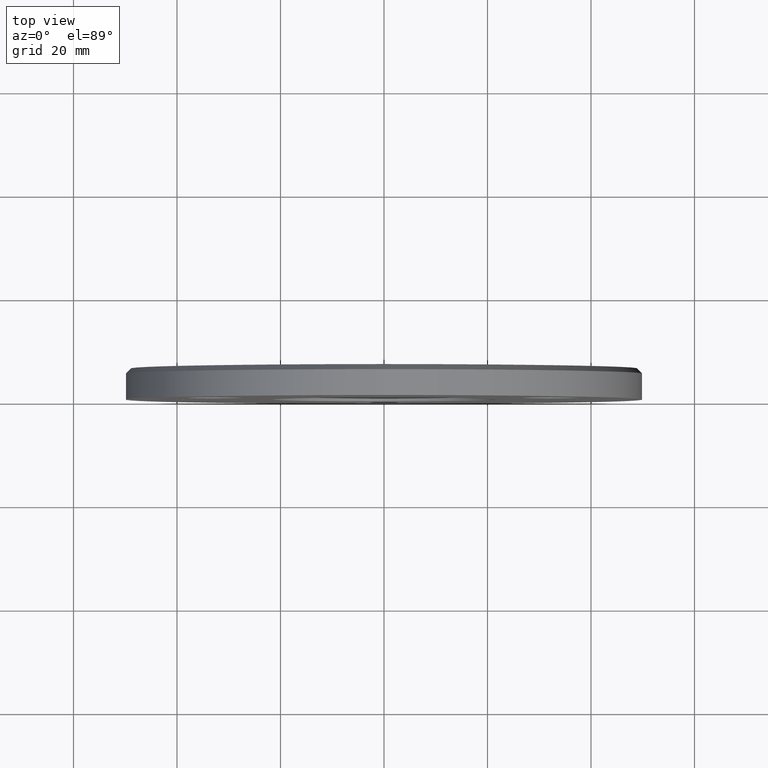
[diagram: clean part render]
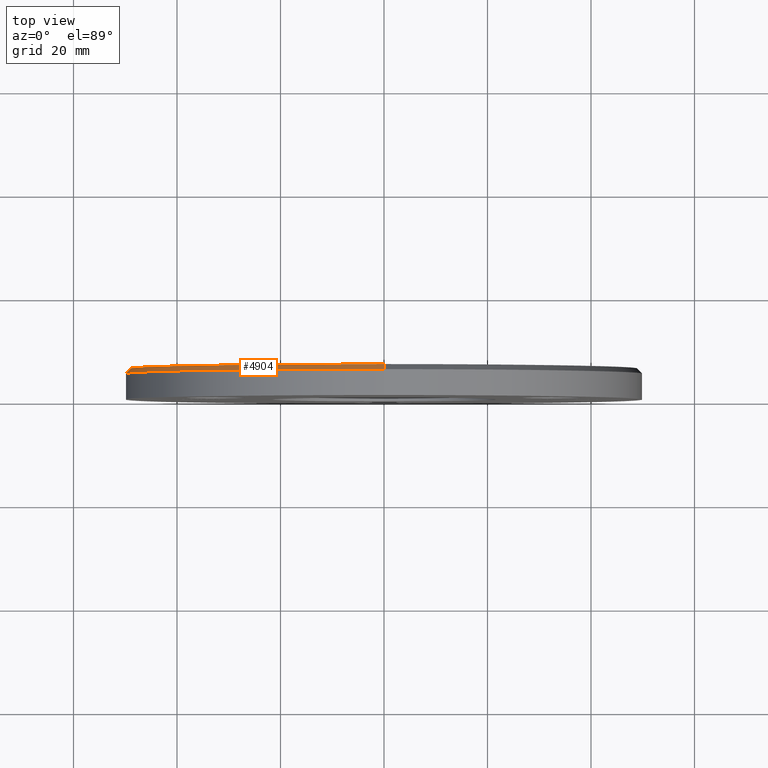
[diagram: same view with one face highlighted and labeled with its STEP entity id]
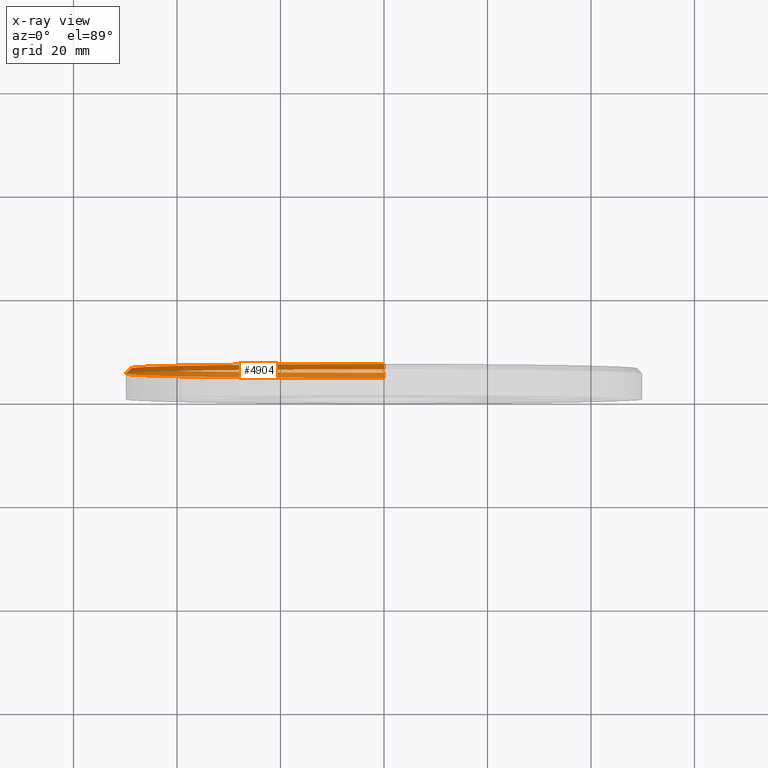
[diagram: x-ray of the same camera — body ghosted, the highlighted face saturated]
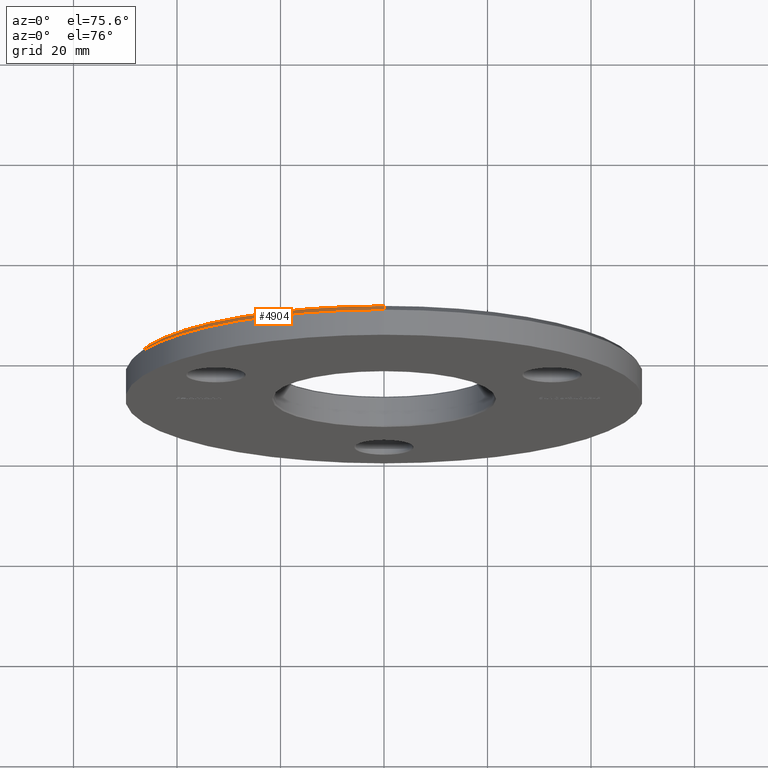
[diagram: same view with one face highlighted and labeled with its STEP entity id]
A machine part, top view. The second image highlights one B-rep face of the part: STEP entity #4904.
The next image is the same camera in x-ray: the body ghosted, the highlighted face saturated — about 50% of this face is hidden behind the body in this view.
A second angle (auxiliary view) of the same face is appended — the face is thin or edge-on in the first view.
In plain terms, the highlighted conical surface has half-angle 45 deg.
Its self-contained STEP definition (entity closure, byte-faithful):
#20 = CIRCLE ( 'NONE', #3393, 50.00000000000000000 ) ;
#529 = LINE ( 'NONE', #3867, #6680 ) ;
#717 = CARTESIAN_POINT ( 'NONE',  ( 0.000000000000000000, 6.000000000000000000, 0.000000000000000000 ) ) ;
#1134 = AXIS2_PLACEMENT_3D ( 'NONE', #717, #6300, #8365 ) ;
#2941 = VERTEX_POINT ( 'NONE', #9615 ) ;
#3051 = FACE_OUTER_BOUND ( 'NONE', #6783, .T. ) ;
#3144 = CARTESIAN_POINT ( 'NONE',  ( 6.062001655779400089E-15, 6.000000000000000000, 49.00000000000002132 ) ) ;
#3225 = EDGE_CURVE ( 'NONE', #2941, #11650, #20, .T. ) ;
#3393 = AXIS2_PLACEMENT_3D ( 'NONE', #5724, #10187, #9029 ) ;
#3676 = EDGE_CURVE ( 'NONE', #13839, #13844, #13365, .T. ) ;
#3867 = CARTESIAN_POINT ( 'NONE',  ( 6.000769315822033304E-15, 6.000000000000000000, 49.00000000000002132 ) ) ;
#4138 = AXIS2_PLACEMENT_3D ( 'NONE', #10151, #5685, #13354 ) ;
#4853 = CARTESIAN_POINT ( 'NONE',  ( 0.000000000000000000, 4.999999999999999112, -50.00000000000000000 ) ) ;
#4904 = ADVANCED_FACE ( 'NONE', ( #3051 ), #12476, .T. ) ;
#5065 = DIRECTION ( 'NONE',  ( 8.659560562354844111E-17, -0.7071067811865549002, 0.7071067811865401342 ) ) ;
#5158 = DIRECTION ( 'NONE',  ( 0.000000000000000000, -0.7071067811865549002, -0.7071067811865401342 ) ) ;
#5685 = DIRECTION ( 'NONE',  ( 0.000000000000000000, 1.000000000000000000, 0.000000000000000000 ) ) ;
#5724 = CARTESIAN_POINT ( 'NONE',  ( 0.000000000000000000, 4.999999999999999112, 0.000000000000000000 ) ) ;
#6102 = CARTESIAN_POINT ( 'NONE',  ( 0.000000000000000000, 6.000000000000000000, -49.00000000000002132 ) ) ;
#6299 = ORIENTED_EDGE ( 'NONE', *, *, #3225, .F. ) ;
#6300 = DIRECTION ( 'NONE',  ( 0.000000000000000000, -1.000000000000000000, 0.000000000000000000 ) ) ;
#6680 = VECTOR ( 'NONE', #5065, 1000.000000000000000 ) ;
#6783 = EDGE_LOOP ( 'NONE', ( #13759, #10857, #11246, #6299 ) ) ;
#7565 = LINE ( 'NONE', #6102, #13234 ) ;
#8365 = DIRECTION ( 'NONE',  ( 0.000000000000000000, 0.000000000000000000, -1.000000000000000000 ) ) ;
#8812 = EDGE_CURVE ( 'NONE', #13839, #11650, #7565, .T. ) ;
#9029 = DIRECTION ( 'NONE',  ( 0.000000000000000000, 0.000000000000000000, 1.000000000000000000 ) ) ;
#9615 = CARTESIAN_POINT ( 'NONE',  ( 6.123233995736766085E-15, 4.999999999999999112, 50.00000000000000000 ) ) ;
#9713 = CARTESIAN_POINT ( 'NONE',  ( 0.000000000000000000, 6.000000000000000000, -49.00000000000002132 ) ) ;
#10151 = CARTESIAN_POINT ( 'NONE',  ( 0.000000000000000000, 6.000000000000000000, 0.000000000000000000 ) ) ;
#10187 = DIRECTION ( 'NONE',  ( 0.000000000000000000, -1.000000000000000000, 0.000000000000000000 ) ) ;
#10294 = EDGE_CURVE ( 'NONE', #13844, #2941, #529, .T. ) ;
#10857 = ORIENTED_EDGE ( 'NONE', *, *, #3676, .F. ) ;
#11246 = ORIENTED_EDGE ( 'NONE', *, *, #8812, .T. ) ;
#11650 = VERTEX_POINT ( 'NONE', #4853 ) ;
#12476 = CONICAL_SURFACE ( 'NONE', #1134, 49.00000000000002132, 0.7853981633974378429 ) ;
#13234 = VECTOR ( 'NONE', #5158, 1000.000000000000000 ) ;
#13354 = DIRECTION ( 'NONE',  ( 0.000000000000000000, 0.000000000000000000, 1.000000000000000000 ) ) ;
#13365 = CIRCLE ( 'NONE', #4138, 49.00000000000002132 ) ;
#13759 = ORIENTED_EDGE ( 'NONE', *, *, #10294, .F. ) ;
#13839 = VERTEX_POINT ( 'NONE', #9713 ) ;
#13844 = VERTEX_POINT ( 'NONE', #3144 ) ;